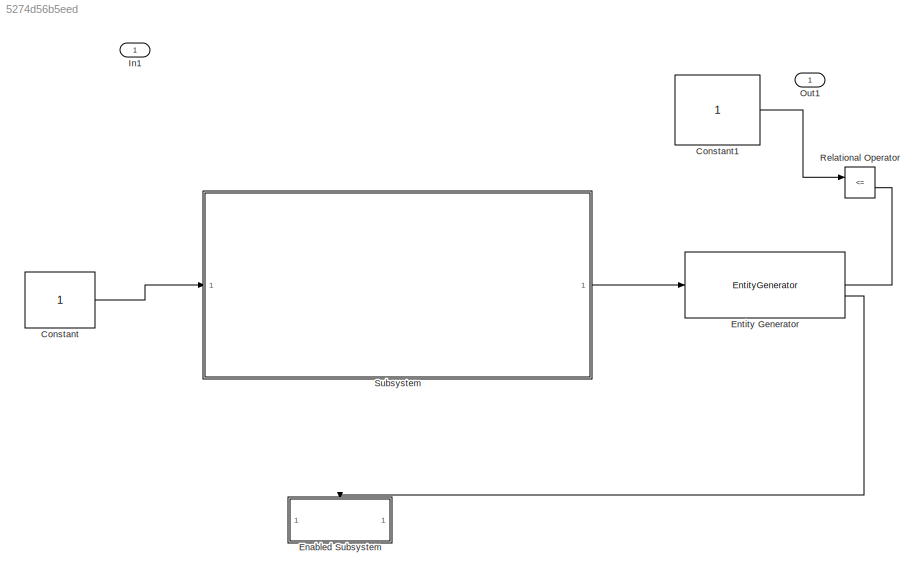
MODEL slx_5274d56b5eed
KIND model
CONFIG AbsTol = auto
CONFIG EnableMultiTasking = off
CONFIG FixedStep = auto
CONFIG MaxStep = auto
CONFIG MinStep = auto
CONFIG RelTol = 1e-3
CONFIG SampleTimeConstraint = Unconstrained
CONFIG SolverName = VariableStepAuto
CONFIG StartTime = 0.0
CONFIG StopTime = 10.0
BLOCK [Constant] Constant
BLOCK [Constant] Constant1
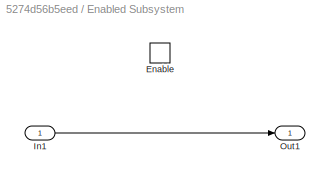
BLOCK [SubSystem] Enabled Subsystem
  TreatAsAtomicUnit = on
BLOCK [EnablePort] Enabled Subsystem/Enable
BLOCK [Inport] Enabled Subsystem/In1
BLOCK [Outport] Enabled Subsystem/Out1
BLOCK [EntityGenerator] Entity Generator
  EntityType = Structured
  EntityTypeName = Entity
  InputPortMap = u1
  NumberEntitiesDeparted = on
  OutputPortMap = o0,o3
  OutputPortMessageModes = n,m
  TimeSource = Signal port
BLOCK [Inport] In1
BLOCK [Outport] Out1
BLOCK [RelationalOperator] Relational Operator
  InputSameDT = off
  Operator = <=
  OutDataTypeStr = boolean
  RndMeth = Simplest
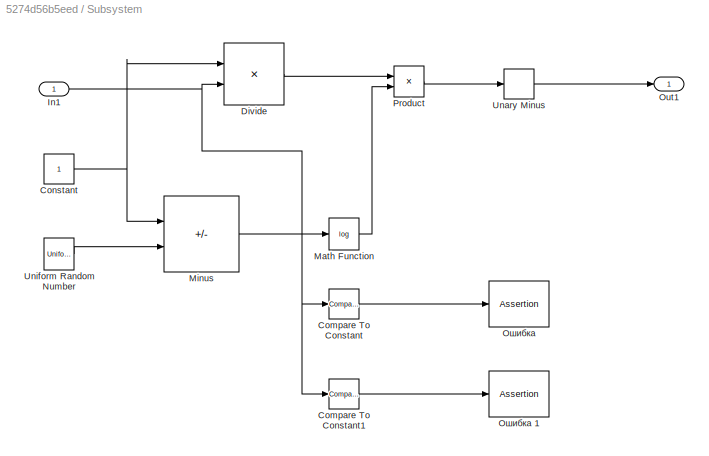
BLOCK [SubSystem] Subsystem
BLOCK [Reference] Subsystem/Compare To Constant  REF=simulink/Logic and Bit
Operations/Compare
To Constant
  SourceBlock = simulink/Logic and Bit\nOperations/Compare\nTo Constant
  SourceType = Compare To Constant
BLOCK [Reference] Subsystem/Compare To Constant1  REF=simulink/Logic and Bit
Operations/Compare
To Constant
  SourceBlock = simulink/Logic and Bit\nOperations/Compare\nTo Constant
  SourceType = Compare To Constant
BLOCK [Constant] Subsystem/Constant
BLOCK [Product] Subsystem/Divide
  Inputs = */
BLOCK [Inport] Subsystem/In1
BLOCK [Math] Subsystem/Math Function
  Operator = log
BLOCK [Sum] Subsystem/Minus
  IconShape = rectangular
  Inputs = +-
BLOCK [Outport] Subsystem/Out1
BLOCK [Product] Subsystem/Product
BLOCK [UnaryMinus] Subsystem/Unary Minus
BLOCK [UniformRandomNumber] Subsystem/Uniform Random Number
  SampleTime = 0.1
BLOCK [Assertion] Subsystem/Ошибка
BLOCK [Assertion] Subsystem/Ошибка 1
LINE Constant1:1 -> Relational Operator:1
LINE Constant:1 -> Subsystem:1
LINE Enabled Subsystem/In1:1 -> Enabled Subsystem/Out1:1
LINE Entity Generator:1 -> Relational Operator:2
LINE Entity Generator:2 -> Enabled Subsystem:enable
LINE Subsystem/Compare To Constant1:1 -> Subsystem/Ошибка 1:1
LINE Subsystem/Compare To Constant:1 -> Subsystem/Ошибка:1
NET Subsystem/Constant:1 -> Subsystem/Divide:1, Subsystem/Minus:1
LINE Subsystem/Divide:1 -> Subsystem/Product:1
NET Subsystem/In1:1 -> Subsystem/Compare To Constant1:1, Subsystem/Compare To Constant:1, Subsystem/Divide:2
LINE Subsystem/Math Function:1 -> Subsystem/Product:2
LINE Subsystem/Minus:1 -> Subsystem/Math Function:1
LINE Subsystem/Product:1 -> Subsystem/Unary Minus:1
LINE Subsystem/Unary Minus:1 -> Subsystem/Out1:1
LINE Subsystem/Uniform Random Number:1 -> Subsystem/Minus:2
LINE Subsystem:1 -> Entity Generator:1
note: NET lines group one-source signal fan-out (src -> all destinations, sorted); 1:1 wires keep LINE
